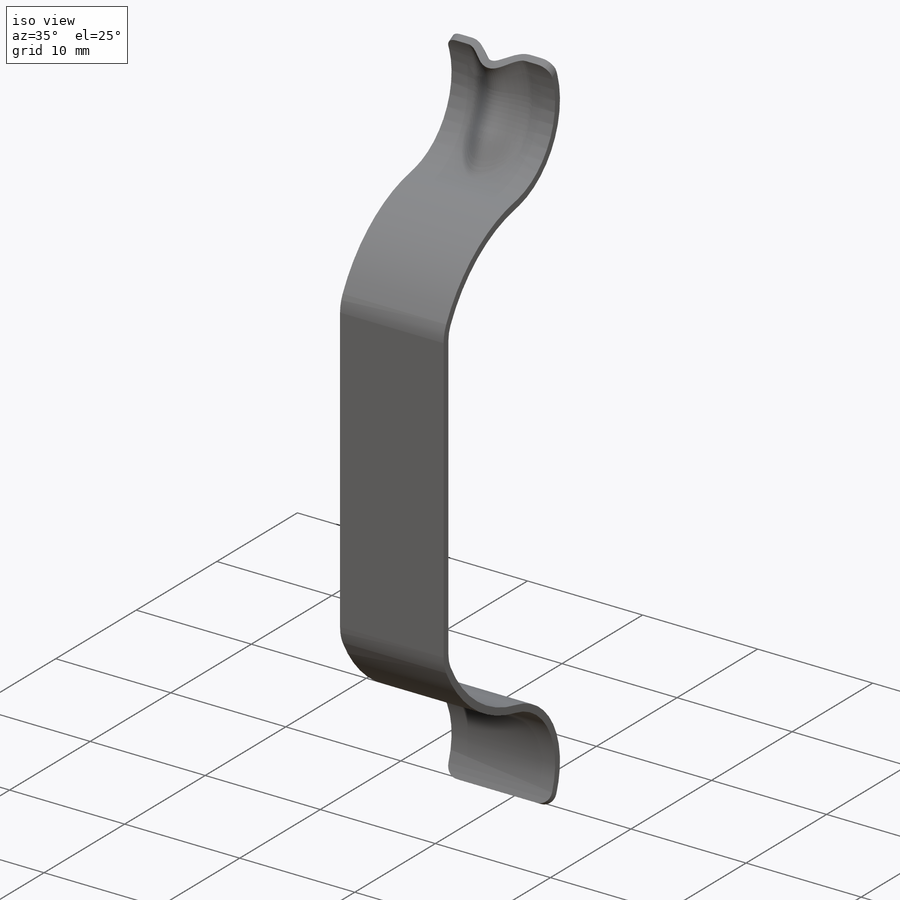
[diagram: iso view]
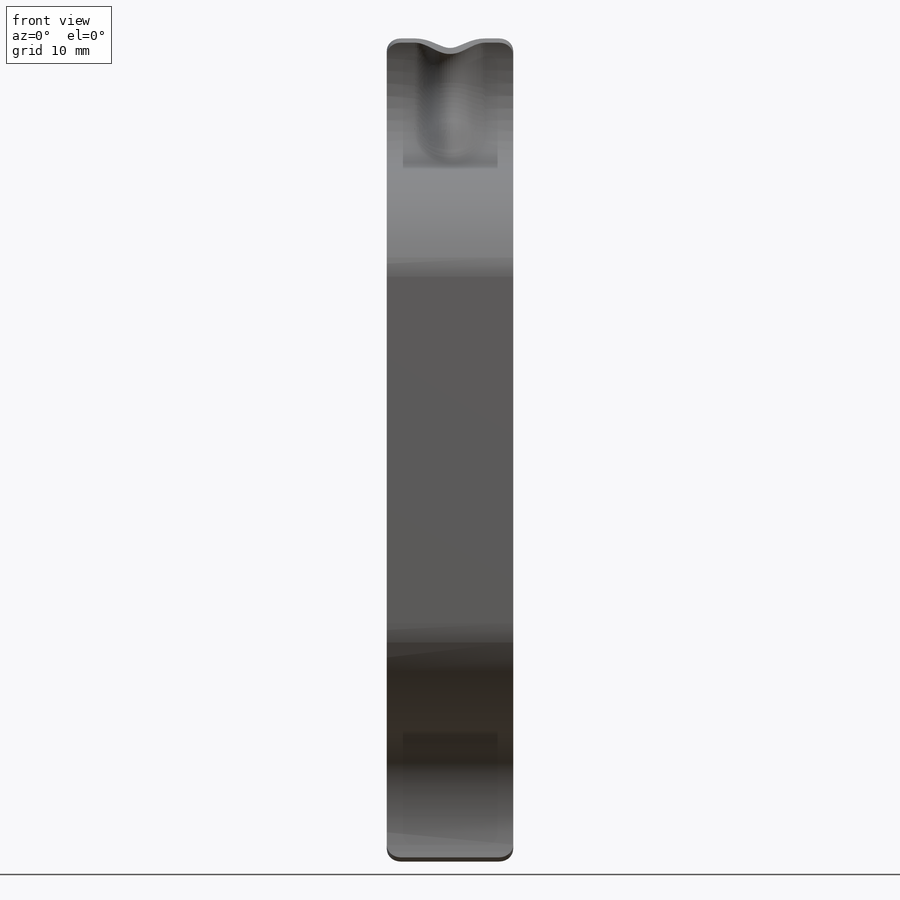
[diagram: front view]
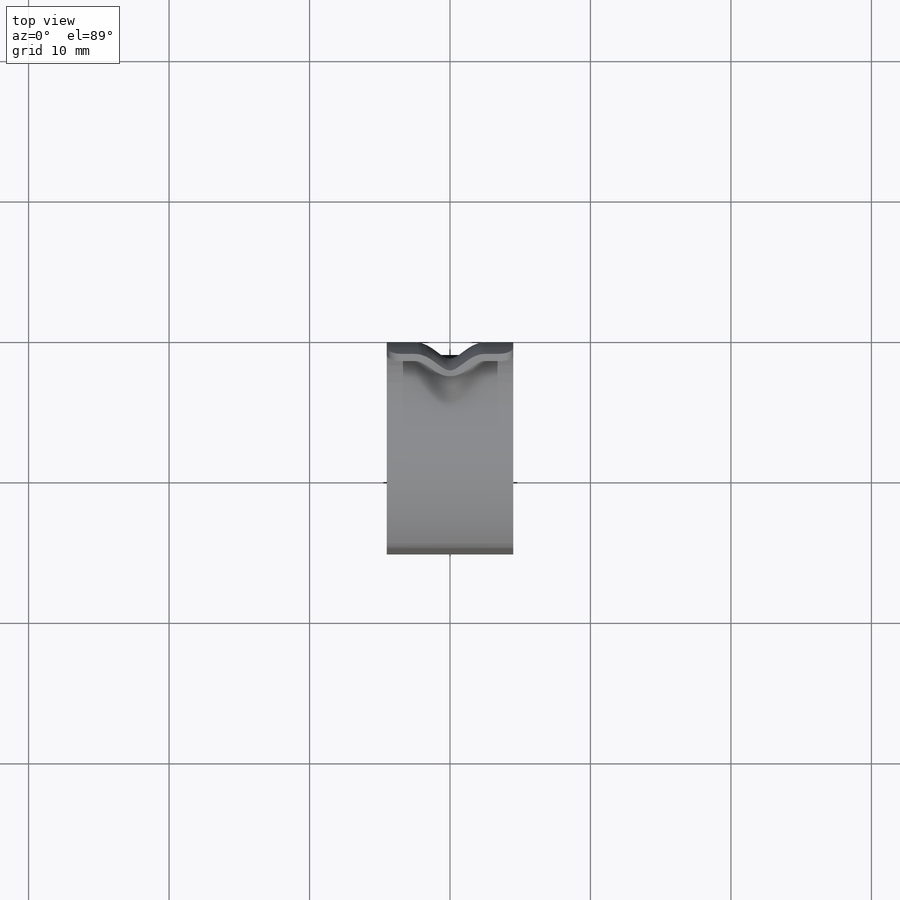
[diagram: top view]
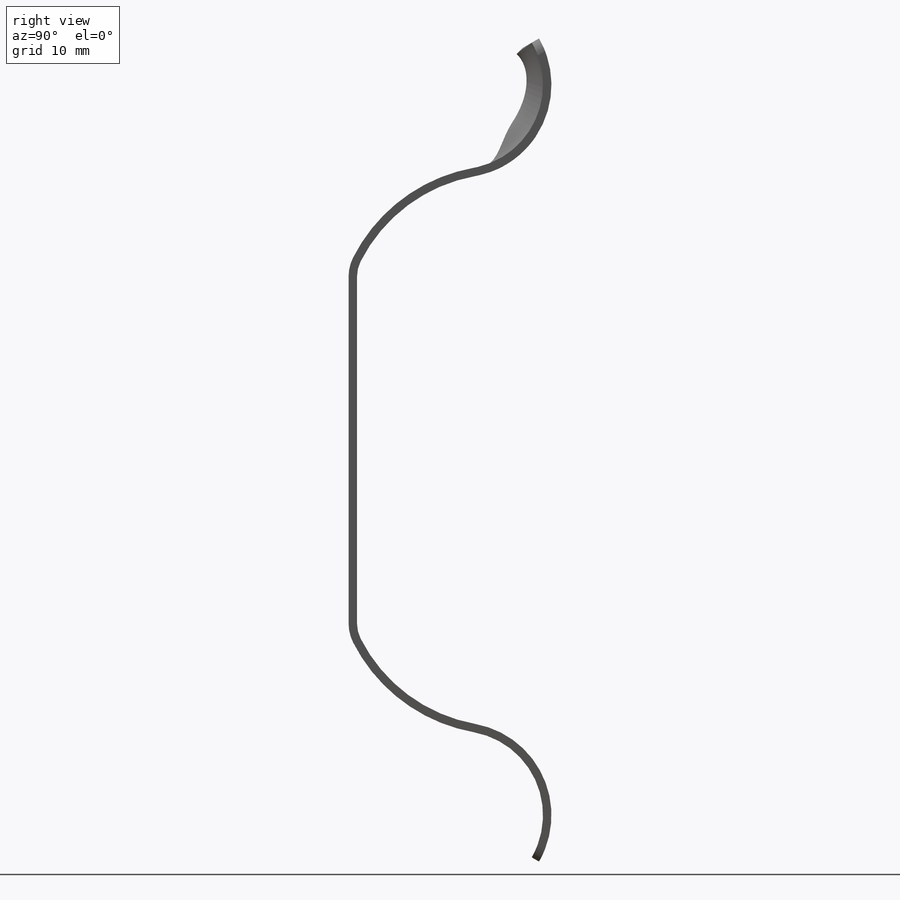
[diagram: right view]
SOLIDWORKS PART (.sldprt)
format: sldprt  version: not decoded by parser v0  size: 579,584 bytes
history: native  units: mm
features: sketch x9, sheet_metal_op x7, plane x5, material x1, delete_body x1, fillet x1 + 6 further entries (+10 scaffold rows collapsed; 1 parser-record rows omitted)
feature tree (41):
  scaffold x10  (default folders/planes/origin — collapsed)
  material  "Material <nicht festgelegt>"
  plane  "Ebene vorne"
  plane  "Ebene oben"
  plane  "Ebene rechts"
  sketch  "Skizze1"  dims[c1.D2=12.0mm c1.D3=6.0mm c1.D8=3.0mm c1.D1=26.0mm c1.D4=7.0mm c1.D5=16.0mm c1.D6=8.7mm c2.D8=0.6mm c2.D1=29.3mm c2.D4=12.2mm c2.D5=13.6mm c2.D6=19.5mm c2.D9=25.4mm c2.D7=0.6mm c3.D1=37.6mm c3.D2=0.5 c3.D3=0.0mm c3.D6=500.0mm]
  sheet_metal_op  "Basis-Blech1"
  sheet_metal_op  "Basisbiegung2"
  sheet_metal_op  "Basisbiegung3"
  sheet_metal_op  "Basisbiegung4"
  sheet_metal_op  "Basisbiegung5"
  sheet_metal_op  "Basisbiegung6"
  plane  "Ebene1"  Offset=0mm
  delete_body  "Körper-Löschen1"
  sketch  "Skizze4"  dims[c1.D3=2.5mm c1.D1=~8.416317mm c1.D2=~4.504589mm c2.D1=5.0mm c2.D2=90.0deg c3.D2=7.0mm]
  sketch  "Skizze2"
  sketch  "Skizze3"  dims[c1.D1=6.6mm c2.D1=60.0deg c2.D2=75.0deg]
  plane  "Ebene2"
  sketch  "Skizze5"  dims[D1=0.6mm]
  fillet  "Verrundung1"  Radius=1mm
  sketch  "Biegung-Linien1"
  sketch  "Rahmen1"
  sheet_metal_op  "Blech4"
  "Abwicklung4"
  sketch  "Biegung-Linien2"
  sketch  "Rahmen2"
  parser-record x1  (decoder bookkeeping rows leaked as tree rows — omitted from the tree; the rows remain in map.json)
  "Abwickeln-<Basisbiegung2>1"
  "Abwickeln-<Basisbiegung3>1"
  "Abwickeln-<Basisbiegung4>1"
  "Abwickeln-<Basisbiegung5>1"
  "Abwickeln-<Basisbiegung6>1"
decode coverage: 5 of 18 modeling features carry decoded parameters; 6 rows unclassified (native names shown)
note: ~ marks probable driven/reference dimensions
note: suppression state not decoded; provenance and decode notes live in map.json
